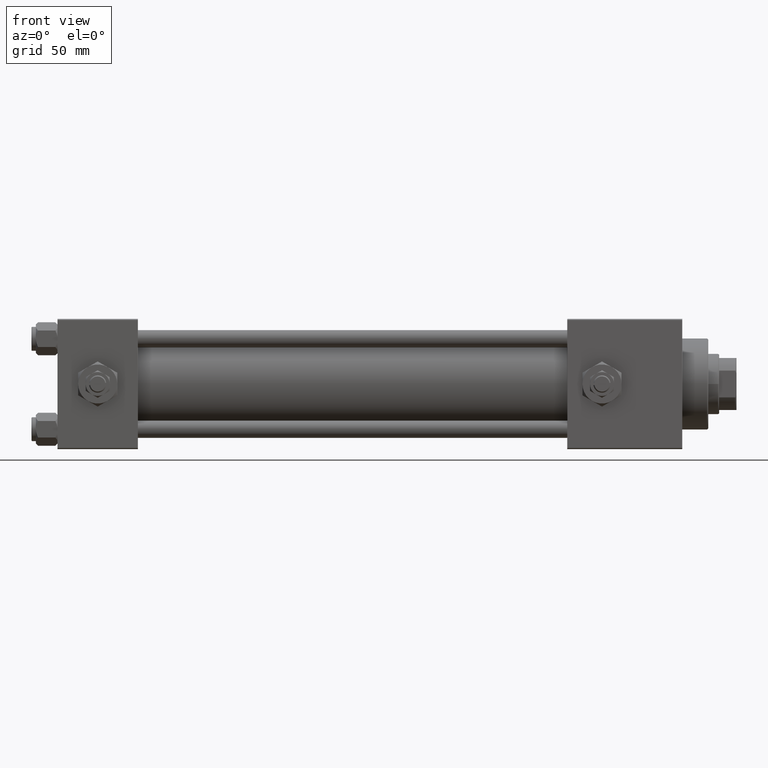
[diagram: clean part render]
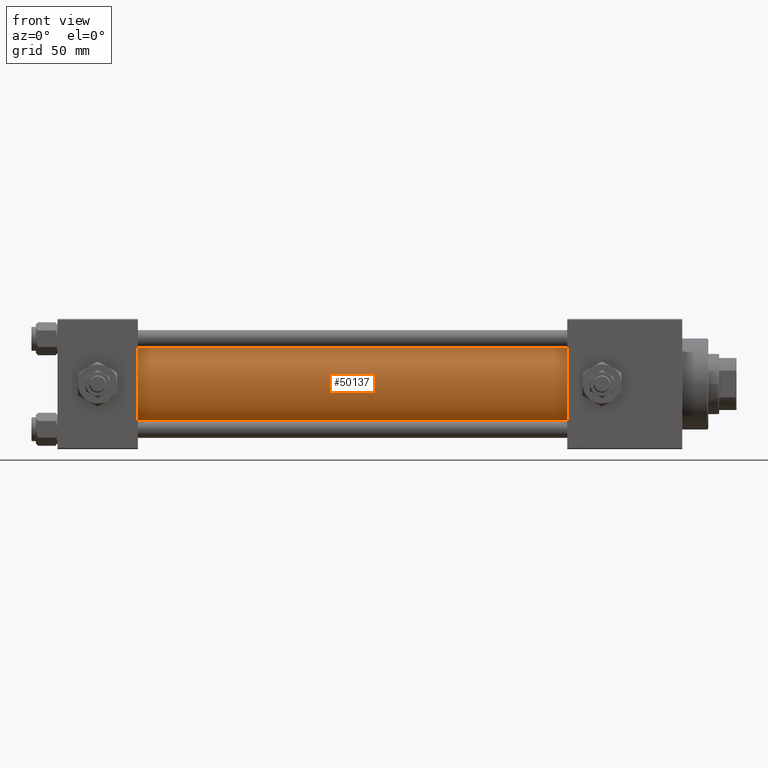
[diagram: same view with one face highlighted and labeled with its STEP entity id]
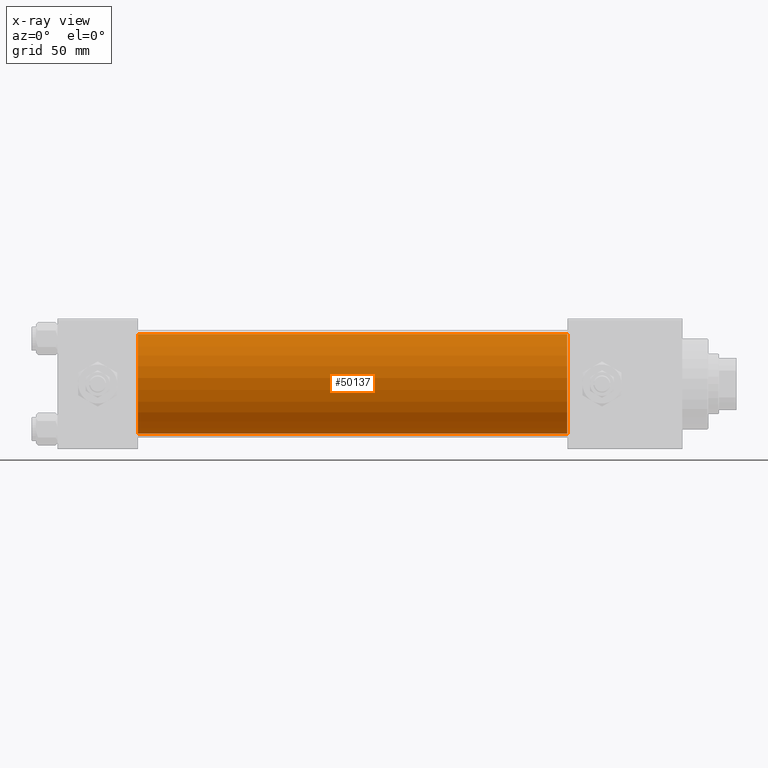
[diagram: x-ray of the same camera — body ghosted, the highlighted face saturated]
A machine part, front view. The second image highlights one B-rep face of the part: STEP entity #50137.
The next image is the same camera in x-ray: the body ghosted, the highlighted face saturated — about 0% of this face is hidden behind the body in this view.
In plain terms, the highlighted cylindrical surface (partial cylindrical patch) has radius 23 mm, axis along (-1, -0, -0).
Its self-contained STEP definition (entity closure, byte-faithful):
#404 = CYLINDRICAL_SURFACE ( 'NONE', #26651, 23.00000000000000000 ) ;
#928 = CARTESIAN_POINT ( 'NONE',  ( 235.0000000000000284, -2.602085213965210642E-15, 0.000000000000000000 ) ) ;
#973 = DIRECTION ( 'NONE',  ( 0.000000000000000000, 0.000000000000000000, 1.000000000000000000 ) ) ;
#1180 = FACE_OUTER_BOUND ( 'NONE', #48383, .T. ) ;
#3555 = VERTEX_POINT ( 'NONE', #9879 ) ;
#4980 = DIRECTION ( 'NONE',  ( 1.000000000000000000, -0.000000000000000000, 0.000000000000000000 ) ) ;
#7786 = ORIENTED_EDGE ( 'NONE', *, *, #15091, .T. ) ;
#9879 = CARTESIAN_POINT ( 'NONE',  ( 37.00000000000000711, -2.602085213965210642E-15, 23.00000000000000000 ) ) ;
#9942 = CARTESIAN_POINT ( 'NONE',  ( 235.0000000000000284, -2.602085213965210642E-15, 23.00000000000000000 ) ) ;
#11302 = ORIENTED_EDGE ( 'NONE', *, *, #22147, .F. ) ;
#12808 = CARTESIAN_POINT ( 'NONE',  ( 235.0000000000000284, -2.602085213965210642E-15, 0.000000000000000000 ) ) ;
#15091 = EDGE_CURVE ( 'NONE', #3555, #23478, #45212, .T. ) ;
#18379 = EDGE_CURVE ( 'NONE', #31081, #3555, #25840, .T. ) ;
#18621 = DIRECTION ( 'NONE',  ( -1.000000000000000000, -0.000000000000000000, -0.000000000000000000 ) ) ;
#20667 = AXIS2_PLACEMENT_3D ( 'NONE', #45550, #4980, #973 ) ;
#22147 = EDGE_CURVE ( 'NONE', #23295, #23478, #31093, .T. ) ;
#23295 = VERTEX_POINT ( 'NONE', #25536 ) ;
#23478 = VERTEX_POINT ( 'NONE', #33920 ) ;
#24937 = CIRCLE ( 'NONE', #52055, 23.00000000000000000 ) ;
#25536 = CARTESIAN_POINT ( 'NONE',  ( 235.0000000000000284, 2.146024240737016609E-16, -23.00000000000000000 ) ) ;
#25577 = DIRECTION ( 'NONE',  ( -1.000000000000000000, -0.000000000000000000, -0.000000000000000000 ) ) ;
#25840 = LINE ( 'NONE', #9942, #44468 ) ;
#26035 = DIRECTION ( 'NONE',  ( 1.000000000000000000, 0.000000000000000000, 0.000000000000000000 ) ) ;
#26651 = AXIS2_PLACEMENT_3D ( 'NONE', #928, #25577, #36757 ) ;
#28756 = ORIENTED_EDGE ( 'NONE', *, *, #49173, .F. ) ;
#31081 = VERTEX_POINT ( 'NONE', #39511 ) ;
#31093 = LINE ( 'NONE', #50744, #46310 ) ;
#33920 = CARTESIAN_POINT ( 'NONE',  ( 37.00000000000000711, 2.146024240737016609E-16, -23.00000000000000000 ) ) ;
#36757 = DIRECTION ( 'NONE',  ( 0.000000000000000000, 0.000000000000000000, 1.000000000000000000 ) ) ;
#38212 = ORIENTED_EDGE ( 'NONE', *, *, #18379, .T. ) ;
#39511 = CARTESIAN_POINT ( 'NONE',  ( 235.0000000000000284, -2.602085213965210642E-15, 23.00000000000000000 ) ) ;
#41767 = DIRECTION ( 'NONE',  ( -1.000000000000000000, -0.000000000000000000, -0.000000000000000000 ) ) ;
#44468 = VECTOR ( 'NONE', #41767, 1000.000000000000000 ) ;
#45212 = CIRCLE ( 'NONE', #20667, 23.00000000000000000 ) ;
#45550 = CARTESIAN_POINT ( 'NONE',  ( 37.00000000000000711, -2.602085213965210642E-15, 0.000000000000000000 ) ) ;
#46310 = VECTOR ( 'NONE', #18621, 1000.000000000000000 ) ;
#48383 = EDGE_LOOP ( 'NONE', ( #11302, #28756, #38212, #7786 ) ) ;
#49173 = EDGE_CURVE ( 'NONE', #31081, #23295, #24937, .T. ) ;
#49420 = DIRECTION ( 'NONE',  ( 0.000000000000000000, 0.000000000000000000, -1.000000000000000000 ) ) ;
#50137 = ADVANCED_FACE ( 'NONE', ( #1180 ), #404, .T. ) ;
#50744 = CARTESIAN_POINT ( 'NONE',  ( 235.0000000000000284, 2.146024240737016609E-16, -23.00000000000000000 ) ) ;
#52055 = AXIS2_PLACEMENT_3D ( 'NONE', #12808, #26035, #49420 ) ;